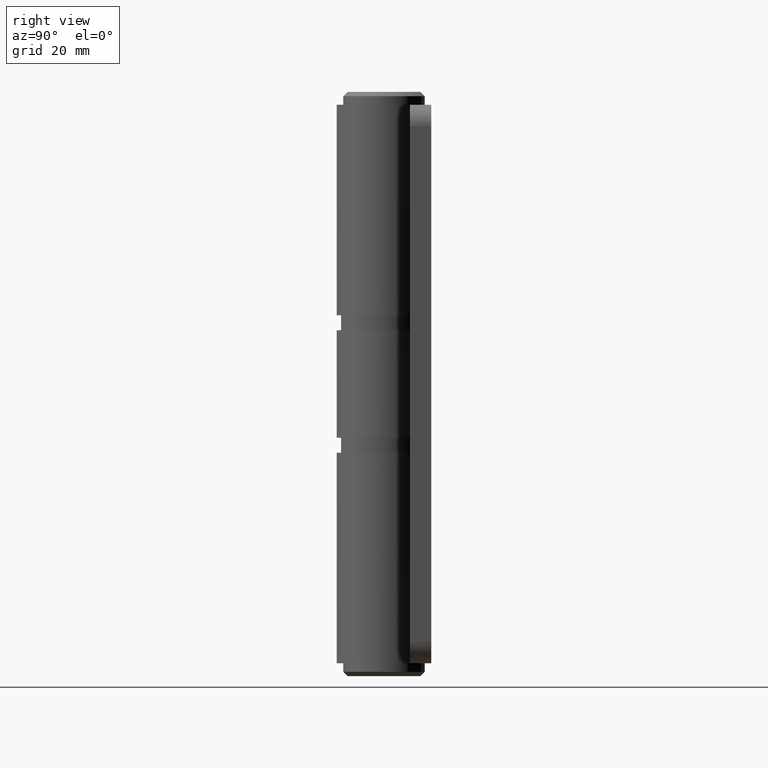
[diagram: clean part render]
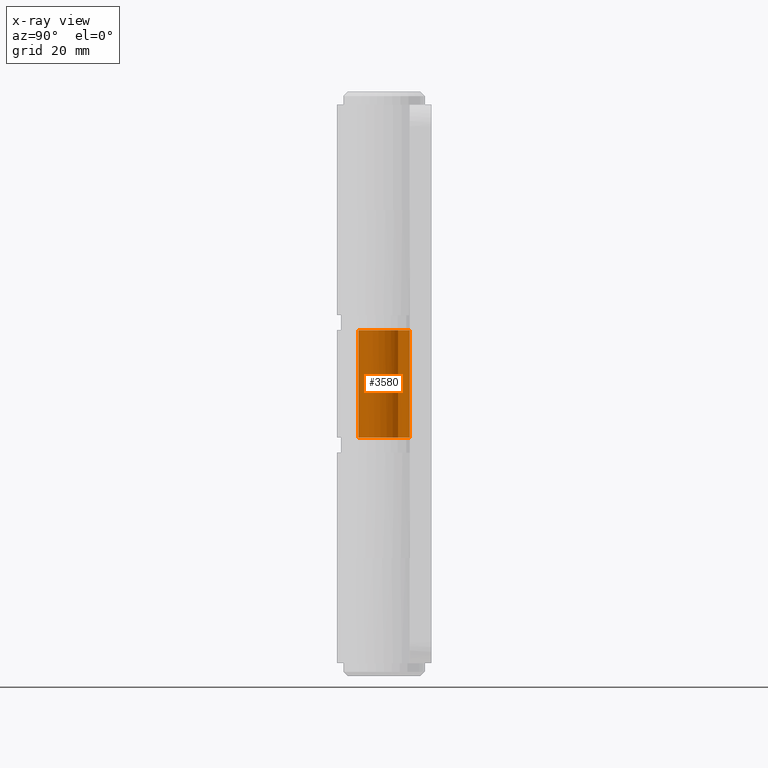
[diagram: x-ray — body ghosted, one internal face saturated and labeled with its STEP entity id]
A machine part, right view, then the same camera in x-ray: the body is ghosted and one INTERNAL B-rep face — a face not visible from any outside direction — is saturated and labeled: STEP entity #3580.
In plain terms, the highlighted face is a freeform B-spline surface patch.
Its self-contained STEP definition (entity closure, byte-faithful):
#2173=CARTESIAN_POINT('',(-8.881784E-016,6.0,77.500000000000000));
#2174=VERTEX_POINT('',#2173);
#2217=CARTESIAN_POINT('',(5.046486380977201,3.245454545454545,77.500000000000000));
#2218=VERTEX_POINT('',#2217);
#2224=CARTESIAN_POINT('',(0.0,6.0,77.500000000000000));
#2225=CARTESIAN_POINT('',(-4.661325999551085,6.0,77.500000000000000));
#2226=CARTESIAN_POINT('',(-5.813742102387346,1.483375463909512,77.500000000000000));
#2227=CARTESIAN_POINT('',(-6.966158205223609,-3.033249072180981,77.500000000000000));
#2228=CARTESIAN_POINT('',(-2.874654129393025,-5.266532411023750,77.500000000000000));
#2229=CARTESIAN_POINT('',(1.216849946437557,-7.499815749866518,77.500000000000000));
#2230=CARTESIAN_POINT('',(4.392344968131427,-4.087457116708447,77.500000000000000));
#2231=CARTESIAN_POINT('',(7.567839989825294,-0.675098483550378,77.500000000000000));
#2232=CARTESIAN_POINT('',(5.046486380977209,3.245454545454543,77.500000000000000));
#2240=(BOUNDED_CURVE()B_SPLINE_CURVE(2,(#2224,#2225,#2226,#2227,#2228,#2229,#2230,#2231,#2232),.UNSPECIFIED.,.F.,.U.)B_SPLINE_CURVE_WITH_KNOTS((3,2,2,2,3),(0.0,0.250000000000000,0.500000000000000,0.750000000000000,1.0),.UNSPECIFIED.)CURVE()GEOMETRIC_REPRESENTATION_ITEM()RATIONAL_B_SPLINE_CURVE((1.0,0.789692738976660,1.0,0.789692738976660,1.0,0.789692738976660,1.0,0.789692738976660,1.0))REPRESENTATION_ITEM(''));
#2241=EDGE_CURVE('',#2174,#2218,#2240,.T.);
#2455=CARTESIAN_POINT('',(-8.881784E-016,6.0,52.500000000000000));
#2456=VERTEX_POINT('',#2455);
#2462=CARTESIAN_POINT('',(5.046486380977201,3.245454545454545,52.500000000000000));
#2463=VERTEX_POINT('',#2462);
#2464=CARTESIAN_POINT('',(5.046486380977204,3.245454545454551,52.500000000000000));
#2465=CARTESIAN_POINT('',(7.567839989825298,-0.675098483550370,52.500000000000014));
#2466=CARTESIAN_POINT('',(4.392344968131430,-4.087457116708444,52.500000000000000));
#2467=CARTESIAN_POINT('',(1.216849946437563,-7.499815749866515,52.500000000000014));
#2468=CARTESIAN_POINT('',(-2.874654129393018,-5.266532411023754,52.500000000000000));
#2469=CARTESIAN_POINT('',(-6.966158205223600,-3.033249072180993,52.500000000000014));
#2470=CARTESIAN_POINT('',(-5.813742102387350,1.483375463909499,52.500000000000000));
#2471=CARTESIAN_POINT('',(-4.661325999551098,6.000000000000001,52.500000000000014));
#2472=CARTESIAN_POINT('',(0.0,6.0,52.500000000000000));
#2480=(BOUNDED_CURVE()B_SPLINE_CURVE(2,(#2464,#2465,#2466,#2467,#2468,#2469,#2470,#2471,#2472),.UNSPECIFIED.,.F.,.U.)B_SPLINE_CURVE_WITH_KNOTS((3,2,2,2,3),(0.0,0.250000000000000,0.500000000000000,0.750000000000000,1.0),.UNSPECIFIED.)CURVE()GEOMETRIC_REPRESENTATION_ITEM()RATIONAL_B_SPLINE_CURVE((1.0,0.789692738976660,1.0,0.789692738976660,1.0,0.789692738976660,1.0,0.789692738976660,1.0))REPRESENTATION_ITEM(''));
#2481=EDGE_CURVE('',#2463,#2456,#2480,.T.);
#3444=CARTESIAN_POINT('',(-8.881784E-016,6.0,77.500000000000000));
#3445=CARTESIAN_POINT('',(-8.881784E-016,6.0,52.500000000000000));
#3446=QUASI_UNIFORM_CURVE('',1,(#3444,#3445),.UNSPECIFIED.,.F.,.U.);
#3447=EDGE_CURVE('',#2174,#2456,#3446,.T.);
#3544=CARTESIAN_POINT('',(5.046486380977201,3.245454545454545,77.500000000000000));
#3545=CARTESIAN_POINT('',(5.046486380977201,3.245454545454545,52.500000000000000));
#3546=QUASI_UNIFORM_CURVE('',1,(#3544,#3545),.UNSPECIFIED.,.F.,.U.);
#3547=EDGE_CURVE('',#2218,#2463,#3546,.T.);
#3552=CARTESIAN_POINT('',(0.157061689847247,5.997943949853342,78.125000000000014));
#3553=CARTESIAN_POINT('',(0.157061689847247,5.997943949853342,51.859374999999993));
#3554=CARTESIAN_POINT('',(-7.293995139731899,6.193056739600266,78.125000000000014));
#3555=CARTESIAN_POINT('',(-7.293995139731899,6.193056739600266,51.859374999999986));
#3556=CARTESIAN_POINT('',(-5.893068422823783,-1.127716526400664,78.125000000000014));
#3557=CARTESIAN_POINT('',(-5.893068422823783,-1.127716526400664,51.859374999999993));
#3558=CARTESIAN_POINT('',(-4.492141705915665,-8.448489792401595,78.125000000000014));
#3559=CARTESIAN_POINT('',(-4.492141705915665,-8.448489792401595,51.859374999999986));
#3560=CARTESIAN_POINT('',(2.360442670133185,-5.516186218848533,78.125000000000014));
#3561=CARTESIAN_POINT('',(2.360442670133185,-5.516186218848533,51.859374999999993));
#3562=CARTESIAN_POINT('',(9.213027046182035,-2.583882645295473,78.125000000000014));
#3563=CARTESIAN_POINT('',(9.213027046182035,-2.583882645295473,51.859374999999986));
#3564=CARTESIAN_POINT('',(4.884693110137913,3.484217734265634,78.125000000000014));
#3565=CARTESIAN_POINT('',(4.884693110137913,3.484217734265634,51.859374999999993));
#3573=(BOUNDED_SURFACE()B_SPLINE_SURFACE(1,2,((#3552,#3554,#3556,#3558,#3560,#3562,#3564),(#3553,#3555,#3557,#3559,#3561,#3563,#3565)),.UNSPECIFIED.,.F.,.F.,.U.)B_SPLINE_SURFACE_WITH_KNOTS((2,2),(3,2,2,3),(0.0,26.265625000000028),(0.0,11.490290591396480,22.980581182792960,34.470871774189433),.UNSPECIFIED.)GEOMETRIC_REPRESENTATION_ITEM()RATIONAL_B_SPLINE_SURFACE(((1.0,0.627057105746662,1.0,0.627057105746662,1.0,0.627057105746662,1.0),(1.0,0.627057105746662,1.0,0.627057105746662,1.0,0.627057105746662,1.0)))REPRESENTATION_ITEM('')SURFACE());
#3574=ORIENTED_EDGE('',*,*,#3447,.F.);
#3575=ORIENTED_EDGE('',*,*,#2241,.T.);
#3576=ORIENTED_EDGE('',*,*,#3547,.T.);
#3577=ORIENTED_EDGE('',*,*,#2481,.T.);
#3578=EDGE_LOOP('',(#3574,#3575,#3576,#3577));
#3579=FACE_OUTER_BOUND('',#3578,.T.);
#3580=ADVANCED_FACE('',(#3579),#3573,.F.);